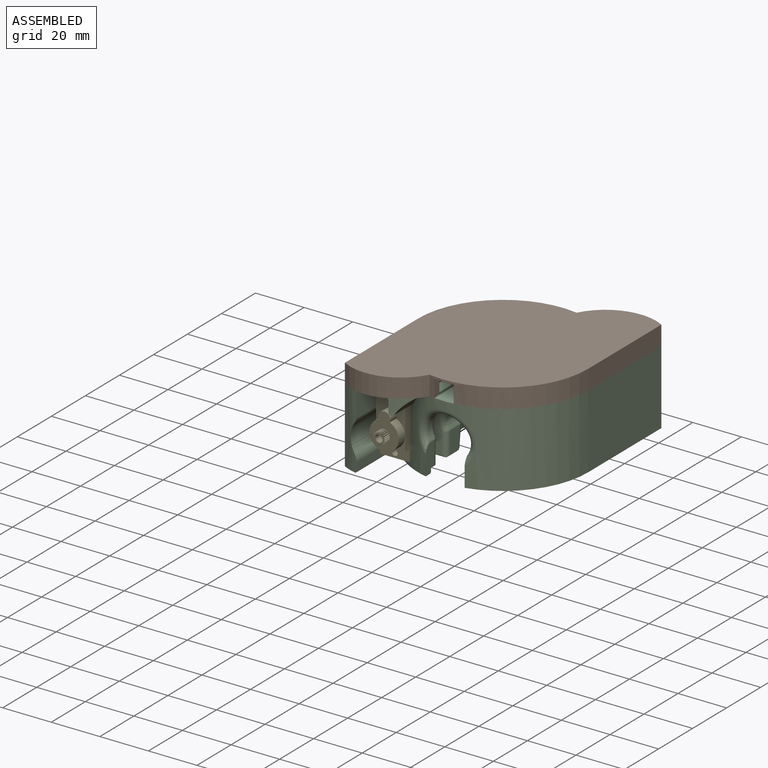
[diagram: assembled view]
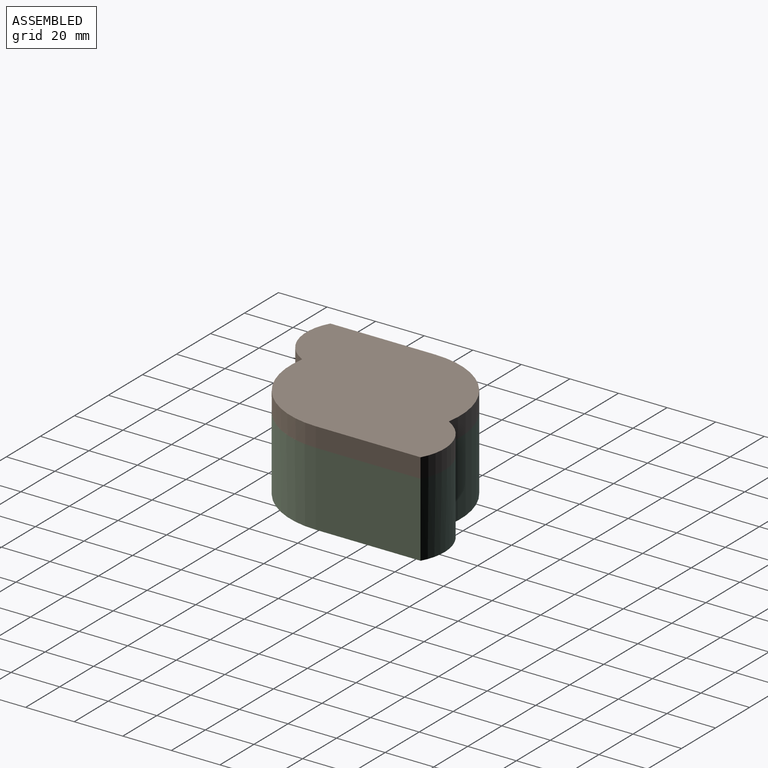
[diagram: assembled view, second angle]
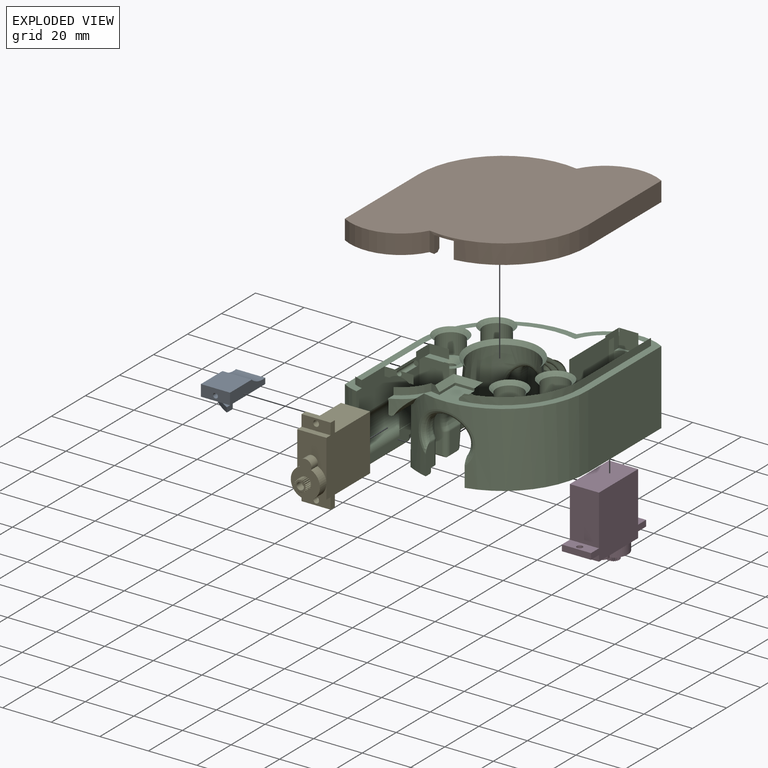
[diagram: exploded view]
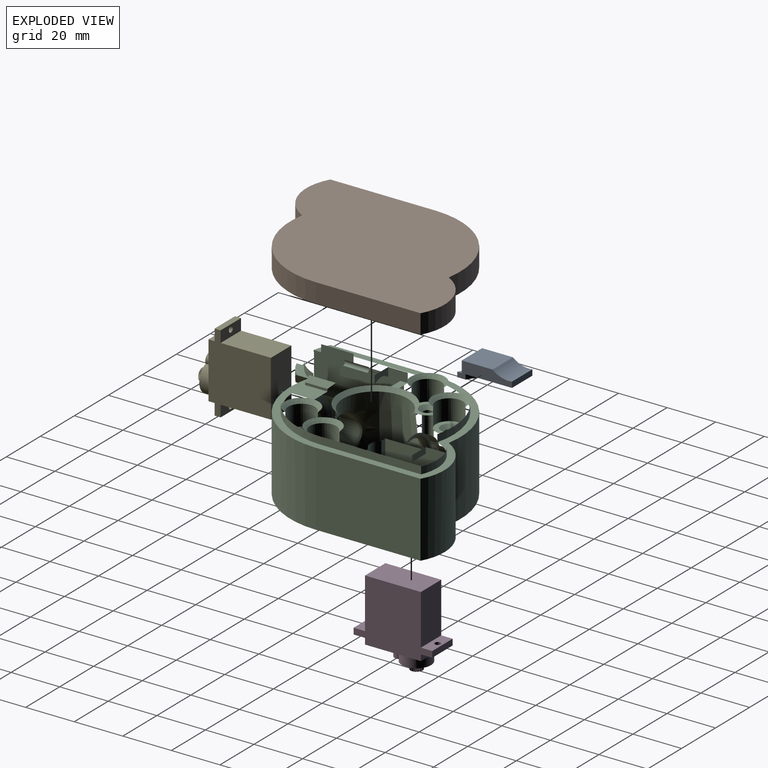
[diagram: exploded view, second angle]
ASSEMBLY  parts=5 mates=3
PART A: 14 faces, bbox 12x6.7x22.6 mm
  f0: plane 12x2.35mm, normal (0,0,1), area 28.2mm2, adj f4,f5,f10,f13
  f1: plane 3.07x1.85mm, normal (0,-1,0), area 2.9mm2, adj f2,f4,f8
  f2: cylinder r=35mm len=12mm, axis (0,1,0), area 32.3mm2, adj f1,f3,f4,f5,f7
  f3: plane 16.36x12mm, normal (0,1,0), area 50.7mm2, adj f2,f4,f5,f6
  f4: plane 22.55x6.7mm, normal (1,0,0), area 89.7mm2, adj f0,f1,f2,f3,f6,f8,f9,f10
  f5: plane 20.7x6.7mm, normal (-1,0,0), area 94.3mm2, adj f0,f2,f3,f6,f7,f8,f9,f10
  f6: cylinder r=32mm len=12.91mm, axis (0,1,0), area 35.7mm2, adj f3,f4,f5,f10
  f7: plane 8.93x8.73mm, normal (0,1,0), area 34.3mm2, adj f2,f5,f8
  f8: plane 12x4.7mm, normal (0,0,-1), area 53.3mm2, adj f1,f4,f5,f7,f9,f11
  f9: plane 12.7x12mm, normal (0,-1,0), area 152.4mm2, adj f4,f5,f8,f13
  f10: plane 19.1x12mm, normal (0,1,0), area 166.3mm2, adj f0,f4,f5,f6
  f11: cylinder r=1mm len=15mm, axis (0,0,-1), area 94.2mm2, adj f8,f12
  f12: plane 2x2mm, normal (0,0,-1), area 3.1mm2, adj f11
  f13: cylinder r=10mm len=12mm, axis (1,0,0), area 103.2mm2, adj f0,f4,f5,f9
PART B: 25 faces, bbox 70x8x91.5 mm
  f0: plane 91.5x70mm, normal (0,1,0), area 523.1mm2, adj f1,f2,f3,f4,f5,f6,f15,f16
  f1: cylinder r=21mm len=28.87mm, axis (0,-1,0), area 268.8mm2, adj f0,f2,f6,f7
  f2: cylinder r=35mm len=41.13mm, axis (0,-1,0), area 433mm2, adj f0,f1,f3,f7,f15,f16,f17
  f3: plane 43.08x8mm, normal (1,0,0), area 344.6mm2, adj f0,f2,f4,f7
  f4: cylinder r=21mm len=28.87mm, axis (0,-1,0), area 268.8mm2, adj f0,f3,f5,f7
  f5: cylinder r=35mm len=41.13mm, axis (0,-1,0), area 489.1mm2, adj f0,f4,f6,f7
  f6: plane 43.08x8mm, normal (-1,0,0), area 344.6mm2, adj f0,f1,f5,f7
  f7: plane 91.5x70mm, normal (0,-1,0), area 4854.4mm2, adj f1,f2,f3,f4,f5,f6
  f8: cylinder r=32mm len=31.75mm, axis (0,-1,0), area 277.5mm2, adj f11,f16,f17,f18
  f9: cylinder r=18mm len=24.13mm, axis (0,-1,0), area 176mm2, adj f12,f13,f17,f23
  f10: cylinder r=18mm len=24.13mm, axis (0,-1,0), area 176mm2, adj f11,f14,f17,f20
  f11: plane 41.22x6mm, normal (-1,0,0), area 247.3mm2, adj f8,f10,f17,f19
  f12: cylinder r=32mm len=6mm, axis (0,-1,0), area 23.7mm2, adj f9,f15,f17,f24
  f13: plane 41.22x6mm, normal (1,0,0), area 247.3mm2, adj f9,f14,f17,f22
  f14: cylinder r=32mm len=39.88mm, axis (0,-1,0), area 349.3mm2, adj f10,f13,f17,f21
  f15: plane 7x3.02mm, normal (1,0,0), area 20.6mm2, adj f0,f2,f12,f17,f24
  f16: plane 7x3.02mm, normal (-1,0,0), area 20.6mm2, adj f0,f2,f8,f17,f18
  f17: plane 85.5x64mm, normal (0,1,0), area 4078.8mm2, adj f2,f8,f9,f10,f11,f12,f13,f14
  f18: cone r=33mm half-angle=45deg, axis (0,1,0), area 66.5mm2, adj f0,f8,f16,f19
  f19: plane 41.88x1.01mm, normal (-0.71,0.71,0), area 58.8mm2, adj f0,f11,f18,f20
  f20: cone r=19mm half-angle=45deg, axis (0,1,0), area 42.5mm2, adj f0,f10,f19,f21
  f21: cone r=33mm half-angle=45deg, axis (0,1,0), area 83mm2, adj f0,f14,f20,f22
  f22: plane 41.88x1.01mm, normal (0.71,0.71,0), area 58.8mm2, adj f0,f13,f21,f23
  f23: cone r=19mm half-angle=45deg, axis (0,1,0), area 42.5mm2, adj f0,f9,f22,f24
  f24: cone r=33mm half-angle=45deg, axis (0,1,0), area 5.1mm2, adj f0,f12,f15,f23
PART C: 203 faces, bbox 70.3x91.5x38.4 mm
  f0: cylinder r=21mm len=30.5mm, axis (0,0,1), area 179.6mm2, adj f2,f5,f11,f19,f25,f37,f90,f91
  f1: plane 15.07x3.65mm, normal (-1,0,0), area 45.1mm2, adj f3,f12,f23,f91,f92,f197
  f2: plane 16.41x3.65mm, normal (1,0,0), area 50.7mm2, adj f0,f3,f12,f91,f96,f196
  f3: plane 12x3.65mm, normal (0,1,0), area 32.3mm2, adj f1,f2,f12,f82,f196,f197,f198
  f4: cylinder r=35mm len=16.11mm, axis (0,0,1), area 51.2mm2, adj f5,f25,f37,f90,f201,f202
  f5: cylinder r=5mm len=26.7mm, axis (0,1,0), area 54.6mm2, adj f0,f4,f37,f201
  f6: plane 8.3x4.55mm, normal (1,0,0), area 37.8mm2, adj f8,f64,f65,f176
  f7: plane 13.7x9.8mm, normal (-1,0,0), area 52.9mm2, adj f8,f41,f46,f64,f65,f139,f171,f173
  f8: plane 71.64x28.08mm, normal (0,0,1), area 690.1mm2, adj f6,f7,f40,f41,f42,f43,f47,f59
  f9: plane 15.89x4mm, normal (0,0,1), area 42.6mm2, adj f44,f46,f172,f179
  f10: cylinder r=8mm len=4.45mm, axis (0,1,0), area 2.1mm2, adj f68,f158,f159
  f11: plane 89.15x51mm, normal (0,0,1), area 439.1mm2, adj f0,f19,f21,f22,f140,f142,f144,f146
  f12: plane 85.1x64.01mm, normal (0,0,-1), area 2322.5mm2, adj f1,f2,f3,f13,f26,f27,f30,f31
  f13: cylinder r=32mm len=31.75mm, axis (0,0,-1), area 136.7mm2, adj f12,f91,f94,f109,f149
  f14: cylinder r=2mm len=18.5mm, axis (0,0,1), area 232.5mm2, adj f111,f124
  f15: cylinder r=2mm len=18.5mm, axis (0,0,1), area 232.5mm2, adj f116,f121
  f16: cylinder r=2mm len=18.5mm, axis (0,0,1), area 232.5mm2, adj f112,f123
  f17: cylinder r=2mm len=18.5mm, axis (0,0,1), area 232.5mm2, adj f115,f118
  f18: plane 43.08x30.5mm, normal (1,0,0), area 1313.8mm2, adj f20,f21,f36,f91
  f19: plane 43.08x30.5mm, normal (-1,0,0), area 1313.8mm2, adj f0,f11,f22,f91
  f20: cylinder r=35mm len=51.53mm, axis (0,0,1), area 1665.5mm2, adj f18,f24,f28,f36,f39,f40,f88,f89
  f21: cylinder r=21mm len=30.5mm, axis (0,0,1), area 1024.8mm2, adj f11,f18,f22,f36,f91,f145,f146
  f22: cylinder r=35mm len=41.13mm, axis (0,0,1), area 1864.7mm2, adj f11,f19,f21,f91
  f23: cylinder r=21mm len=7.66mm, axis (0,0,1), area 29.5mm2, adj f1,f28,f89,f91,f197,f200
  f24: plane 22.55x6.55mm, normal (-1,0,0), area 99.8mm2, adj f20,f38,f75,f88,f127,f137,f199
  f25: plane 37.11x6.05mm, normal (1,0,0), area 149mm2, adj f0,f4,f42,f75,f90,f126,f140,f202
  f26: plane 8x7.5mm, normal (1,0,0), area 34.2mm2, adj f12,f27,f35,f62,f81,f91,f99,f178
  f27: plane 8x7.5mm, normal (0,1,0), area 59.8mm2, adj f12,f26,f34,f81,f91,f93
  f28: cylinder r=17mm len=11.39mm, axis (0,1,0), area 67mm2, adj f20,f23,f89,f91
  f29: cone r=13mm half-angle=5deg, axis (0,0,1), area 1824.4mm2, adj f113,f114,f119,f154,f155,f157,f159,f161
  f30: plane 8x3.8mm, normal (1,0,0), area 29.6mm2, adj f12,f32,f33,f75,f80,f196
  f31: plane 8x3.8mm, normal (-1,0,0), area 29.6mm2, adj f12,f32,f33,f75,f80,f197
  f32: plane 8x3.8mm, normal (0,1,0), area 30.4mm2, adj f12,f30,f31,f80
  f33: plane 8x3.65mm, normal (0,-1,0), area 20.8mm2, adj f12,f30,f31,f198
  f34: plane 8x7.5mm, normal (-1,0,0), area 34.2mm2, adj f12,f27,f35,f62,f81,f172
  f35: plane 8x2.5mm, normal (0,-1,0), area 20mm2, adj f12,f26,f34,f62
  f36: plane 79.82x27mm, normal (0,0,1), area 316.5mm2, adj f18,f20,f21,f40,f138,f139,f141,f143
  f37: cylinder r=9mm len=26.51mm, axis (0,1,0), area 318.2mm2, adj f0,f4,f5,f90
  f38: cylinder r=32mm len=8.53mm, axis (0,0,1), area 14.1mm2, adj f24,f39,f48,f127,f137
  f39: plane 11.72x5.37mm, normal (1,0,0), area 52.1mm2, adj f20,f38,f48,f88,f137,f152,f193,f195
  f40: plane 11.72x5.37mm, normal (-1,0,0), area 52.1mm2, adj f8,f20,f36,f41,f138,f153,f194,f195
  f41: cylinder r=32mm len=45.54mm, axis (0,0,1), area 85.9mm2, adj f7,f8,f40,f138
  f42: cylinder r=32mm len=46.49mm, axis (0,0,1), area 118.5mm2, adj f8,f25,f47,f48,f66,f126,f142
  f43: plane 9.8x4.55mm, normal (1,0,0), area 41.8mm2, adj f8,f45,f47,f63,f146,f178
  f44: plane 9.8x4.55mm, normal (-1,0,0), area 41.8mm2, adj f9,f45,f46,f63,f143,f172
  f45: plane 12x9.8mm, normal (0,1,0), area 117.6mm2, adj f43,f44,f63,f145
  f46: cylinder r=10mm len=16mm, axis (0,0,-1), area 27.8mm2, adj f7,f9,f44,f141,f171
  f47: cylinder r=10mm len=11.47mm, axis (0,0,-1), area 19.2mm2, adj f8,f42,f43,f144
  f48: plane 62.74x28.08mm, normal (0,0,1), area 604.8mm2, adj f38,f39,f42,f59,f60,f61,f69,f70
  f49: plane 8.92x5.83mm, normal (1,0,0), area 47.7mm2, adj f129,f150,f154,f188
  f50: plane 8.92x5.83mm, normal (-1,0,0), area 47.7mm2, adj f133,f151,f155,f182
  f51: cylinder r=13mm len=25.91mm, axis (0,1,0), area 200.9mm2, adj f52,f53,f77,f78
  f52: plane 26.5x26mm, normal (0,1,0), area 150.3mm2, adj f51,f76,f77,f78,f79,f130,f134,f150
  f53: plane 26.5x26mm, normal (0,-1,0), area 150.3mm2, adj f51,f76,f77,f78,f79,f132,f136,f152
  f54: cylinder r=7.8mm len=15.6mm, axis (0,1,0), area 105.4mm2, adj f59,f70,f73,f163
  f55: cylinder r=10.3mm len=20.6mm, axis (0,1,0), area 113.3mm2, adj f60,f61,f69,f74
  f56: cylinder r=8mm len=4.45mm, axis (0,1,0), area 2.1mm2, adj f67,f158,f159
  f57: plane 16.8x5.6mm, normal (0,1,0), area 90.7mm2, adj f66,f168,f169,f170
  f58: cylinder r=4.8mm len=9.6mm, axis (0,1,0), area 34.7mm2, adj f71,f72,f166,f169
  f59: plane 21.8x15.6mm, normal (0,1,0), area 50.9mm2, adj f8,f48,f54,f70,f73,f165,f166,f167
  f60: plane 24.3x20.6mm, normal (0,1,0), area 29.8mm2, adj f8,f48,f55,f69,f74,f162,f163,f164
  f61: plane 24.3x20.6mm, normal (0,-1,0), area 18mm2, adj f8,f48,f55,f69,f74,f156,f158,f160
  f62: plane 25.12x12.3mm, normal (0,0,1), area 255.2mm2, adj f26,f34,f35,f172,f173,f175,f176,f177
  f63: plane 12x4.55mm, normal (0,0,1), area 40.7mm2, adj f43,f44,f45,f84,f172,f174,f178
  f64: plane 12x8.3mm, normal (0,-1,0), area 99.6mm2, adj f6,f7,f8,f65
  f65: plane 12x4.55mm, normal (0,0,1), area 41.8mm2, adj f6,f7,f64,f86,f173,f175,f176
  f66: plane 7.83x0.34mm, normal (0,0,-1), area 1.2mm2, adj f42,f57,f168,f170
  f67: plane 4.9x0.54mm, normal (-1,0,0), area 1.3mm2, adj f56,f156,f157
  f68: plane 4.9x0.54mm, normal (1,0,0), area 1.3mm2, adj f10,f160,f161
  f69: plane 14x3.5mm, normal (1,0,0), area 49mm2, adj f48,f55,f60,f61
  f70: plane 14x4.3mm, normal (1,0,0), area 60.2mm2, adj f48,f54,f59,f162
  f71: plane 14x2.3mm, normal (-1,0,0), area 32.2mm2, adj f8,f58,f167,f170
  f72: plane 14x2.3mm, normal (1,0,0), area 32.2mm2, adj f48,f58,f165,f168
  f73: plane 14x4.3mm, normal (-1,0,0), area 60.2mm2, adj f8,f54,f59,f164
  f74: plane 14x3.5mm, normal (-1,0,0), area 49mm2, adj f8,f55,f60,f61
  f75: plane 27.35x12.3mm, normal (0,1,0), area 334mm2, adj f24,f25,f30,f31,f80,f128,f196,f197
  f76: plane 14.6x5.2mm, normal (-1,0,0), area 75.9mm2, adj f52,f53,f77,f135
  f77: plane 5.2x0.05mm, normal (0,0,1), area 0.2mm2, adj f51,f52,f53,f76
  f78: plane 5.2x0.05mm, normal (0,0,1), area 0.2mm2, adj f51,f52,f53,f79
  f79: plane 14.6x5.2mm, normal (1,0,0), area 75.9mm2, adj f52,f53,f78,f131
  f80: plane 8x3mm, normal (0,0,-1), area 24mm2, adj f30,f31,f32,f75
  f81: plane 8x2.85mm, normal (0,0,-1), area 11.6mm2, adj f26,f27,f34,f174
  f82: cylinder r=1mm len=10mm, axis (0,1,0), area 62.8mm2, adj f3,f83
  f83: plane 2x2mm, normal (0,1,0), area 3.1mm2, adj f82
  f84: cylinder r=1mm len=11.7mm, axis (0,0,-1), area 53.5mm2, adj f63,f85,f174
  f85: plane 2x1.66mm, normal (0,0,1), area 2.7mm2, adj f84,f174
  f86: cylinder r=1mm len=11.7mm, axis (0,0,-1), area 58.9mm2, adj f65,f87,f175
  f87: plane 2x1.81mm, normal (0,0,1), area 3mm2, adj f86,f175
  f88: plane 8.53x6.09mm, normal (0,0,1), area 23mm2, adj f20,f24,f39,f137
  f89: cylinder r=1mm len=13.08mm, axis (0,1,0), area 25.2mm2, adj f20,f23,f28,f200
  f90: cylinder r=5mm len=26.73mm, axis (0,1,0), area 86.1mm2, adj f0,f4,f25,f37
  f91: plane 91.15x70mm, normal (0,0,-1), area 831.3mm2, adj f0,f1,f2,f13,f18,f19,f20,f21
  f92: cylinder r=18mm len=9.75mm, axis (0,0,-1), area 40mm2, adj f1,f12,f91,f95
  f93: cylinder r=18mm len=13.43mm, axis (0,0,-1), area 41.3mm2, adj f12,f27,f91,f94
  f94: plane 41.22x3mm, normal (1,0,0), area 123.7mm2, adj f12,f13,f91,f93
  f95: cylinder r=32mm len=3.88mm, axis (0,0,-1), area 9.8mm2, adj f12,f91,f92,f110,f147
  f96: cylinder r=18mm len=3.47mm, axis (0,0,-1), area 11mm2, adj f2,f12,f91,f97
  f97: plane 41.22x3mm, normal (-1,0,0), area 123.7mm2, adj f12,f91,f96,f98
  f98: cylinder r=32mm len=39.88mm, axis (0,0,-1), area 174.7mm2, adj f12,f91,f97,f99
  f99: cylinder r=18mm len=10.63mm, axis (0,0,-1), area 46.5mm2, adj f12,f26,f91,f98
  f100: cylinder r=5.5mm len=11mm, axis (0,0,-1), area 293.7mm2, adj f101,f117
  f101: plane 11x11mm, normal (0,0,-1), area 56.5mm2, adj f100,f118
  f102: cylinder r=5.5mm len=11mm, axis (0,0,-1), area 293.7mm2, adj f103,f122
  f103: plane 11x11mm, normal (0,0,-1), area 56.5mm2, adj f102,f123
  f104: cylinder r=5.5mm len=11mm, axis (0,0,-1), area 293.7mm2, adj f105,f120
  f105: plane 11x11mm, normal (0,0,-1), area 56.5mm2, adj f104,f121
  f106: cylinder r=5.5mm len=11mm, axis (0,0,-1), area 293.7mm2, adj f107,f125
  f107: plane 11x11mm, normal (0,0,-1), area 56.5mm2, adj f106,f124
  f108: plane 8x1mm, normal (0,1,0), area 8mm2, adj f91,f109,f110,f148
  f109: plane 9.25x1mm, normal (-1,0,0), area 9.2mm2, adj f13,f91,f108,f149
  f110: plane 9.25x1mm, normal (1,0,0), area 9.2mm2, adj f91,f95,f108,f147
  f111: cone r=3.5mm half-angle=45deg, axis (0,0,1), area 36.6mm2, adj f8,f14,f134,f135
  f112: cone r=3.5mm half-angle=45deg, axis (0,0,1), area 36.7mm2, adj f8,f16
  f113: cone r=15.88mm half-angle=47.5deg, axis (0,0,1), area 70.3mm2, adj f8,f29,f133,f155,f156,f157
  f114: cone r=15.88mm half-angle=47.5deg, axis (0,0,1), area 70.3mm2, adj f29,f48,f129,f154,f160,f161
  f115: cone r=3.5mm half-angle=45deg, axis (0,0,1), area 36.7mm2, adj f17,f48
  f116: cone r=3.5mm half-angle=45deg, axis (0,0,1), area 36.7mm2, adj f15,f48
  f117: cone r=5.5mm half-angle=45deg, axis (0,0,-1), area 83.3mm2, adj f12,f100
  f118: cone r=2mm half-angle=45deg, axis (0,0,-1), area 36.7mm2, adj f17,f101
  f119: cone r=13.36mm half-angle=42.5deg, axis (0,0,-1), area 196.2mm2, adj f12,f29
  f120: cone r=5.5mm half-angle=45deg, axis (0,0,-1), area 83.3mm2, adj f12,f104
  f121: cone r=2mm half-angle=45deg, axis (0,0,-1), area 36.7mm2, adj f15,f105
  f122: cone r=5.5mm half-angle=45deg, axis (0,0,-1), area 83.3mm2, adj f12,f102
  f123: cone r=2mm half-angle=45deg, axis (0,0,-1), area 36.7mm2, adj f16,f103
  f124: cone r=2mm half-angle=45deg, axis (0,0,-1), area 36.7mm2, adj f14,f107
  f125: cone r=5.5mm half-angle=45deg, axis (0,0,-1), area 83.3mm2, adj f12,f106
  f126: plane 6.7x0.51mm, normal (0.71,0,0.71), area 4.2mm2, adj f25,f42,f48,f128
  f127: plane 19.9x0.5mm, normal (-0.71,0,0.71), area 13.8mm2, adj f24,f38,f48,f128
  f128: plane 13x0.5mm, normal (0,0.71,0.71), area 8.8mm2, adj f48,f75,f126,f127
  f129: plane 6.56x0.74mm, normal (0.71,0,0.71), area 4.1mm2, adj f48,f49,f114,f150,f154
  f130: plane 5.06x0.74mm, normal (0,0.71,0.71), area 2.9mm2, adj f48,f52,f131,f150
  f131: plane 6.2x0.5mm, normal (0.71,0,0.71), area 4mm2, adj f48,f79,f130,f132
  f132: plane 5.06x0.74mm, normal (0,-0.71,0.71), area 2.9mm2, adj f48,f53,f131,f152
  f133: plane 6.56x0.74mm, normal (-0.71,0,0.71), area 4.1mm2, adj f8,f50,f113,f151,f155
  f134: plane 5x0.74mm, normal (0,0.71,0.71), area 2.9mm2, adj f8,f52,f111,f135,f151
  f135: plane 6.14x0.5mm, normal (-0.71,0,0.71), area 4mm2, adj f8,f76,f111,f134,f136
  f136: plane 5.06x0.74mm, normal (0,-0.71,0.71), area 2.9mm2, adj f8,f53,f135,f153
  f137: cone r=32mm half-angle=45deg, axis (0,0,1), area 6.6mm2, adj f24,f38,f39,f88
  f138: cone r=32mm half-angle=45deg, axis (0,0,1), area 40.8mm2, adj f36,f40,f41,f139
  f139: plane 10.11x0.5mm, normal (-0.71,0,0.71), area 7mm2, adj f7,f36,f138,f141
  f140: plane 30.91x0.5mm, normal (0.71,0,0.71), area 21.8mm2, adj f0,f11,f25,f142
  f141: cone r=10.5mm half-angle=45deg, axis (0,0,1), area 13.3mm2, adj f36,f46,f139,f143
  f142: cone r=32mm half-angle=45deg, axis (0,0,1), area 55.7mm2, adj f11,f42,f140,f144
  f143: plane 3.2x0.5mm, normal (-0.71,0,0.71), area 2mm2, adj f36,f44,f141,f145
  f144: cone r=10.5mm half-angle=45deg, axis (0,0,1), area 8.8mm2, adj f11,f47,f142,f146
  f145: plane 12.99x0.5mm, normal (0,0.71,0.71), area 8.8mm2, adj f21,f36,f45,f143,f146
  f146: plane 3.2x0.5mm, normal (0.71,0,0.71), area 2mm2, adj f11,f21,f43,f144,f145
  f147: plane 11.25x2.01mm, normal (0.71,0,-0.71), area 28.6mm2, adj f12,f95,f110,f148
  f148: plane 12x2mm, normal (0,0.71,-0.71), area 28.3mm2, adj f12,f108,f147,f149
  f149: plane 11.25x2.01mm, normal (-0.71,0,-0.71), area 28.6mm2, adj f12,f13,f109,f148
  f150: cylinder r=2mm len=9.42mm, axis (0,0,-1), area 28.9mm2, adj f48,f49,f52,f129,f130,f187
  f151: cylinder r=2mm len=9.42mm, axis (0,0,1), area 28.9mm2, adj f8,f50,f52,f133,f134,f183
  f152: cylinder r=2mm len=9.42mm, axis (0,0,1), area 29.2mm2, adj f39,f48,f53,f132,f191
  f153: cylinder r=2mm len=9.42mm, axis (0,0,-1), area 29.2mm2, adj f8,f40,f53,f136,f192
  f154: bspline ~21.44x3.88mm, area 16.1mm2, adj f29,f49,f114,f129,f189
  f155: bspline ~21.44x3.88mm, area 16.1mm2, adj f29,f50,f113,f133,f184
  f156: cylinder r=2mm len=14mm, axis (0,0,-1), area 41.4mm2, adj f8,f61,f67,f113,f157,f158
  f157: bspline ~23.91x4.14mm, area 23mm2, adj f29,f67,f113,f156,f159
  f158: torus R=10mm, axis (0,-1,0), area 76.8mm2, adj f10,f56,f61,f156,f159,f160
  f159: bspline ~17.63x12.1mm, area 55.1mm2, adj f10,f29,f56,f157,f158,f161
  f160: cylinder r=2mm len=14mm, axis (0,0,-1), area 41.4mm2, adj f48,f61,f68,f114,f158,f161
  f161: bspline ~23.91x4.14mm, area 23mm2, adj f29,f68,f114,f159,f160
  f162: cylinder r=2mm len=14mm, axis (0,0,-1), area 44mm2, adj f48,f60,f70,f163
  f163: torus R=9.8mm, axis (0,1,0), area 84.2mm2, adj f54,f60,f162,f164
  f164: cylinder r=2mm len=14mm, axis (0,0,-1), area 44mm2, adj f8,f60,f73,f163
  f165: cylinder r=2mm len=14mm, axis (0,0,-1), area 44mm2, adj f48,f59,f72,f166
  f166: torus R=6.8mm, axis (0,1,0), area 54.5mm2, adj f58,f59,f165,f167
  f167: cylinder r=2mm len=14mm, axis (0,0,-1), area 44mm2, adj f8,f59,f71,f166
  f168: cylinder r=2mm len=14mm, axis (0,0,1), area 44mm2, adj f48,f57,f66,f72,f169
  f169: torus R=2.8mm, axis (0,1,0), area 40.2mm2, adj f57,f58,f168,f170
  f170: cylinder r=2mm len=14mm, axis (0,0,1), area 44mm2, adj f8,f57,f66,f71,f169
  f171: plane 9.26x0.15mm, normal (0,0,-1), area 1.4mm2, adj f7,f46,f173,f179
  f172: plane 29x2.15mm, normal (0,1,0), area 45.7mm2, adj f9,f34,f44,f62,f63,f174,f179
  f173: plane 29x2.29mm, normal (0,-1,0), area 48.6mm2, adj f7,f62,f65,f171,f175,f179
  f174: cylinder r=5mm len=15.7mm, axis (0,0,1), area 127.9mm2, adj f63,f81,f84,f85,f172,f178
  f175: cylinder r=5mm len=20.7mm, axis (0,0,1), area 168.9mm2, adj f62,f65,f86,f87,f173,f176
  f176: plane 29x2.29mm, normal (0,-1,0), area 48.6mm2, adj f6,f8,f62,f65,f175,f177
  f177: plane 29x23.3mm, normal (1,0,0), area 675.7mm2, adj f8,f62,f176,f178
  f178: plane 29x2.15mm, normal (0,1,0), area 45.7mm2, adj f8,f26,f43,f62,f63,f174,f177
  f179: plane 29x23.3mm, normal (-1,0,0), area 675.7mm2, adj f9,f62,f171,f172,f173
  f180: cylinder r=9mm len=18mm, axis (0,1,0), area 230.3mm2, adj f182,f185,f186,f188
  f181: cylinder r=9mm len=18mm, axis (0,1,0), area 103.8mm2, adj f190,f193,f194,f195
  f182: cylinder r=2mm len=5.83mm, axis (0,1,0), area 5mm2, adj f50,f180,f183,f184
  f183: sphere r=2mm, area 1.7mm2, adj f151,f182,f185
  f184: sphere r=2mm, area 1.3mm2, adj f155,f182,f186
  f185: torus R=11mm, axis (0,1,0), area 122.3mm2, adj f52,f180,f183,f187
  f186: bspline ~19.4x16.76mm, area 86.8mm2, adj f29,f180,f184,f189
  f187: sphere r=2mm, area 1.7mm2, adj f150,f185,f188
  f188: cylinder r=2mm len=5.83mm, axis (0,1,0), area 5mm2, adj f49,f180,f187,f189
  f189: sphere r=2mm, area 0.9mm2, adj f154,f186,f188
  f190: torus R=11mm, axis (0,1,0), area 122.3mm2, adj f53,f181,f191,f192
  f191: sphere r=2mm, area 1.7mm2, adj f152,f190,f193
  f192: sphere r=2mm, area 1.7mm2, adj f153,f190,f194
  f193: cylinder r=2mm len=3.51mm, axis (0,1,0), area 2.6mm2, adj f39,f181,f191,f195
  f194: cylinder r=2mm len=3.51mm, axis (0,1,0), area 2.6mm2, adj f40,f181,f192,f195
  f195: bspline ~23.34x19.97mm, area 154.1mm2, adj f20,f39,f40,f181,f193,f194
  f196: plane 37.11x2.15mm, normal (0,0,1), area 47mm2, adj f0,f2,f3,f30,f75,f198,f201
  f197: plane 35.77x2.15mm, normal (0,0,1), area 46.8mm2, adj f1,f3,f23,f31,f75,f198,f200
  f198: cylinder r=6mm len=15.7mm, axis (0,1,0), area 137.5mm2, adj f3,f33,f196,f197
  f199: plane 22.63x0.15mm, normal (0,0,-1), area 3.4mm2, adj f20,f24,f75,f200
  f200: plane 35.71x23.3mm, normal (-1,0,0), area 596.3mm2, adj f20,f23,f75,f89,f197,f199
  f201: plane 37.08x23.3mm, normal (1,0,0), area 519.7mm2, adj f0,f4,f5,f75,f196,f202
  f202: plane 11.97x0.15mm, normal (0,0,-1), area 1.8mm2, adj f4,f25,f75,f201
PART D: 87 faces, bbox 12x32.4x32.5 mm
  f0: cylinder r=2.5mm len=3mm, axis (0,0,-1), area 0.6mm2, adj f40,f43,f84,f85
  f1: cylinder r=2.5mm len=3mm, axis (0,0,-1), area 0.6mm2, adj f40,f43,f82,f83
  f2: cylinder r=2.5mm len=3mm, axis (0,0,-1), area 0.6mm2, adj f40,f43,f80,f81
  f3: cylinder r=2.5mm len=3mm, axis (0,0,-1), area 0.6mm2, adj f40,f43,f76,f79
  f4: cylinder r=2.5mm len=3mm, axis (0,0,-1), area 0.6mm2, adj f40,f43,f74,f77
  f5: cylinder r=2.5mm len=3mm, axis (0,0,-1), area 0.6mm2, adj f40,f43,f75,f78
  f6: cylinder r=2.5mm len=3mm, axis (0,0,-1), area 0.6mm2, adj f40,f43,f72,f73
  f7: cylinder r=2.5mm len=3mm, axis (0,0,-1), area 0.6mm2, adj f40,f43,f48,f71
  f8: cylinder r=2.5mm len=3mm, axis (0,0,-1), area 0.6mm2, adj f40,f43,f68,f69
  f9: cylinder r=2.5mm len=3mm, axis (0,0,-1), area 0.6mm2, adj f40,f43,f67,f86
  f10: cylinder r=2.5mm len=3mm, axis (0,0,-1), area 0.6mm2, adj f40,f43,f65,f70
  f11: cylinder r=2.5mm len=3mm, axis (0,0,-1), area 0.6mm2, adj f40,f43,f63,f66
  f12: cylinder r=2.5mm len=3mm, axis (0,0,-1), area 0.6mm2, adj f40,f43,f60,f61
  f13: cylinder r=2.5mm len=3mm, axis (0,0,-1), area 0.6mm2, adj f40,f43,f58,f59
  f14: cylinder r=2.5mm len=3mm, axis (0,0,-1), area 0.6mm2, adj f40,f43,f56,f57
  f15: cylinder r=2.5mm len=3mm, axis (0,0,-1), area 0.6mm2, adj f40,f43,f55,f64
  f16: cylinder r=2.5mm len=3mm, axis (0,0,-1), area 0.6mm2, adj f40,f43,f46,f53
  f17: cylinder r=2.5mm len=3mm, axis (0,0,-1), area 0.6mm2, adj f40,f43,f51,f54
  f18: cylinder r=2.5mm len=3mm, axis (0,0,-1), area 0.6mm2, adj f40,f43,f49,f52
  f19: cylinder r=2.5mm len=3mm, axis (0,0,-1), area 0.6mm2, adj f40,f43,f47,f50
  f20: plane 17x12mm, normal (0,0,1), area 134.4mm2, adj f24,f26,f36,f38,f39
  f21: plane 6x6mm, normal (0,0,1), area 7.7mm2, adj f26,f35,f39
  f22: plane 12x4.7mm, normal (0,0,1), area 51.9mm2, adj f24,f26,f29,f31,f35
  f23: plane 20.7x12mm, normal (0,1,0), area 248.4mm2, adj f24,f26,f27,f34
  f24: plane 32.4x25.7mm, normal (-1,0,0), area 614.6mm2, adj f20,f22,f23,f25,f27,f28,f29,f30
  f25: plane 20.7x12mm, normal (0,-1,0), area 248.4mm2, adj f24,f26,f27,f28
  f26: plane 32.4x25.7mm, normal (1,0,0), area 614.6mm2, adj f20,f21,f22,f23,f25,f27,f28,f29
  f27: plane 23x12mm, normal (0,0,-1), area 276mm2, adj f23,f24,f25,f26
  f28: plane 12x4.7mm, normal (0,0,-1), area 51.9mm2, adj f24,f25,f26,f30,f32
  f29: plane 12x2.5mm, normal (0,1,0), area 30mm2, adj f22,f24,f26,f34
  f30: plane 12x2.5mm, normal (0,-1,0), area 30mm2, adj f24,f26,f28,f33
  f31: cylinder r=1.2mm len=2.5mm, axis (0,0,-1), area 18.8mm2, adj f22,f34
  f32: cylinder r=1.2mm len=2.5mm, axis (0,0,-1), area 18.8mm2, adj f28,f33
  f33: plane 12x4.7mm, normal (0,0,1), area 51.9mm2, adj f24,f26,f30,f32,f36
  f34: plane 12x4.7mm, normal (0,0,-1), area 51.9mm2, adj f23,f24,f26,f29,f31
  f35: plane 12x2.5mm, normal (0,1,0), area 30mm2, adj f21,f22,f24,f26,f37
  f36: plane 12x2.5mm, normal (0,-1,0), area 30mm2, adj f20,f24,f26,f33
  f37: plane 6x6mm, normal (0,0,1), area 7.7mm2, adj f24,f35,f39
  f38: cylinder r=2.5mm len=5mm, axis (0,0,-1), area 37.3mm2, adj f20,f39,f40
  f39: cylinder r=6mm len=12mm, axis (0,0,-1), area 125.3mm2, adj f20,f21,f37,f38,f40
  f40: plane 15x12mm, normal (0,0,1), area 109.3mm2, adj f0,f1,f2,f3,f4,f5,f6,f7
  f41: cylinder r=1.5mm len=3mm, axis (0,0,-1), area 28.3mm2, adj f43,f44
  f42: cylinder r=2.5mm len=3mm, axis (0,0,-1), area 0.6mm2, adj f40,f43,f45,f62
  f43: plane 5x4.99mm, normal (0,0,1), area 9.8mm2, adj f0,f1,f2,f3,f4,f5,f6,f7
  f44: plane 3x3mm, normal (0,0,1), area 7.1mm2, adj f41
  f45: plane 3x0.47mm, normal (0.87,0.5,0), area 1.6mm2, adj f40,f42,f43,f46
  f46: plane 3x0.47mm, normal (-0.87,0.5,0), area 1.6mm2, adj f16,f40,f43,f45
  f47: plane 3x0.42mm, normal (0.78,-0.62,0), area 1.6mm2, adj f19,f40,f43,f48
  f48: plane 3x0.54mm, normal (0.15,0.99,0), area 1.6mm2, adj f7,f40,f43,f47
  f49: plane 3x0.5mm, normal (0.93,-0.37,0), area 1.6mm2, adj f18,f40,f43,f50
  f50: plane 3x0.54mm, normal (-0.15,0.99,0), area 1.6mm2, adj f19,f40,f43,f49
  f51: plane 3x0.54mm, normal (1,-0.07,0), area 1.6mm2, adj f17,f40,f43,f52
  f52: plane 3x0.49mm, normal (-0.43,0.9,0), area 1.6mm2, adj f18,f40,f43,f51
  f53: plane 3x0.53mm, normal (0.97,0.22,0), area 1.6mm2, adj f16,f40,f43,f54
  f54: plane 3x0.4mm, normal (-0.68,0.73,0), area 1.6mm2, adj f17,f40,f43,f53
  f55: plane 3x0.54mm, normal (-0.15,0.99,0), area 1.6mm2, adj f15,f40,f43,f56
  f56: plane 3x0.42mm, normal (-0.78,-0.62,0), area 1.6mm2, adj f14,f40,f43,f55
  f57: plane 3x0.54mm, normal (0.15,0.99,0), area 1.6mm2, adj f14,f40,f43,f58
  f58: plane 3x0.5mm, normal (-0.93,-0.37,0), area 1.6mm2, adj f13,f40,f43,f57
  f59: plane 3x0.49mm, normal (0.43,0.9,0), area 1.6mm2, adj f13,f40,f43,f60
  f60: plane 3x0.54mm, normal (-1,-0.07,0), area 1.6mm2, adj f12,f40,f43,f59
  f61: plane 3x0.4mm, normal (0.68,0.73,0), area 1.6mm2, adj f12,f40,f43,f62
  f62: plane 3x0.53mm, normal (-0.97,0.22,0), area 1.6mm2, adj f40,f42,f43,f61
  f63: plane 3x0.49mm, normal (-0.43,0.9,0), area 1.6mm2, adj f11,f40,f43,f64
  f64: plane 3x0.45mm, normal (-0.56,-0.83,0), area 1.6mm2, adj f15,f40,f43,f63
  f65: plane 3x0.4mm, normal (-0.68,0.73,0), area 1.6mm2, adj f10,f40,f43,f66
  f66: plane 3x0.52mm, normal (-0.29,-0.96,0), area 1.6mm2, adj f11,f40,f43,f65
  f67: plane 3x0.53mm, normal (-0.97,0.22,0), area 1.6mm2, adj f9,f40,f43,f68
  f68: plane 3x0.52mm, normal (0.29,-0.96,0), area 1.6mm2, adj f8,f40,f43,f67
  f69: plane 3x0.47mm, normal (-0.87,0.5,0), area 1.6mm2, adj f8,f40,f43,f70
  f70: plane 3x0.54mm, normal (0,-1,0), area 1.6mm2, adj f10,f40,f43,f69
  f71: plane 3x0.45mm, normal (0.56,-0.83,0), area 1.6mm2, adj f7,f40,f43,f72
  f72: plane 3x0.49mm, normal (0.43,0.9,0), area 1.6mm2, adj f6,f40,f43,f71
  f73: plane 3x0.52mm, normal (0.29,-0.96,0), area 1.6mm2, adj f6,f40,f43,f74
  f74: plane 3x0.4mm, normal (0.68,0.73,0), area 1.6mm2, adj f4,f40,f43,f73
  f75: plane 3x0.52mm, normal (-0.29,-0.96,0), area 1.6mm2, adj f5,f40,f43,f76
  f76: plane 3x0.53mm, normal (0.97,0.22,0), area 1.6mm2, adj f3,f40,f43,f75
  f77: plane 3x0.54mm, normal (0,-1,0), area 1.6mm2, adj f4,f40,f43,f78
  f78: plane 3x0.47mm, normal (0.87,0.5,0), area 1.6mm2, adj f5,f40,f43,f77
  f79: plane 3x0.45mm, normal (-0.56,-0.83,0), area 1.6mm2, adj f3,f40,f43,f80
  f80: plane 3x0.54mm, normal (1,-0.07,0), area 1.6mm2, adj f2,f40,f43,f79
  f81: plane 3x0.42mm, normal (-0.78,-0.62,0), area 1.6mm2, adj f2,f40,f43,f82
  f82: plane 3x0.5mm, normal (0.93,-0.37,0), area 1.6mm2, adj f1,f40,f43,f81
  f83: plane 3x0.5mm, normal (-0.93,-0.37,0), area 1.6mm2, adj f1,f40,f43,f84
  f84: plane 3x0.42mm, normal (0.78,-0.62,0), area 1.6mm2, adj f0,f40,f43,f83
  f85: plane 3x0.54mm, normal (-1,-0.07,0), area 1.6mm2, adj f0,f40,f43,f86
  f86: plane 3x0.45mm, normal (0.56,-0.83,0), area 1.6mm2, adj f9,f40,f43,f85
PART E: same geometry as D
PLACE A rot(axis=(-1,0,0),90deg) t=(0,0,-39)mm
PLACE B rot(axis=(-1,0,0),90deg) t=(0,0,-39)mm
PLACE C rot(axis=(1,0,0),180deg) t=(0,8.45,-25.55)mm
PLACE D rot(axis=(0,1,0),180deg) t=(22.5,27.15,-7.5)mm
PLACE E rot(axis=(0,0.71,-0.71),180deg) t=(-22.53,-8.3,-20.3)mm
MATE fastened C.f24 <-> A.f4  axis (-1,0,0) through (-16.53,-30.85,-38.5)mm
MATE fastened C.f91 <-> B.f0  axis (0,0,1) through (35,43.08,-8)mm
MATE fastened C.f65 <-> D.f28  axis (0,0,-1) through (16.5,10.95,-28.2)mm
